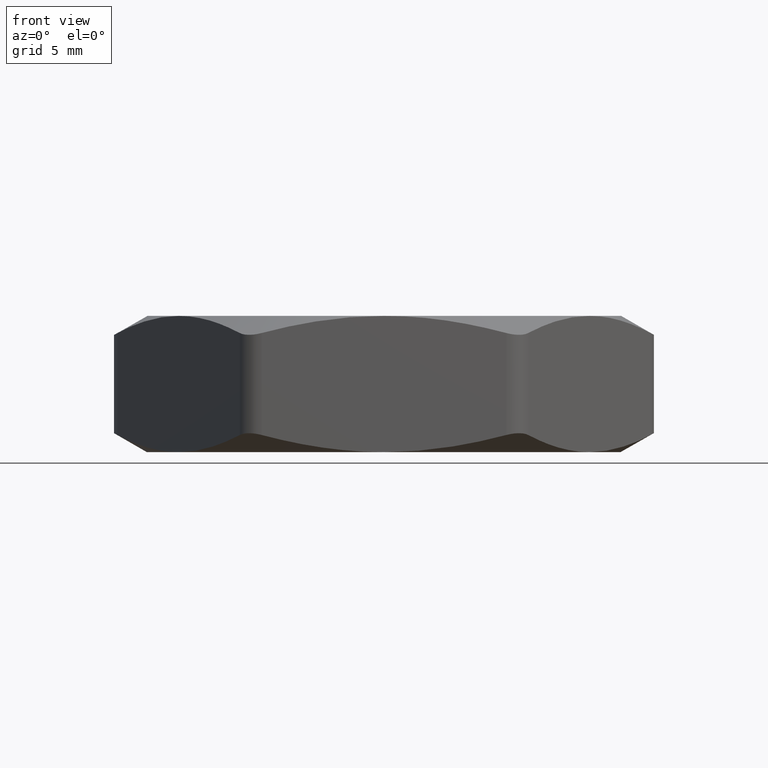
[diagram: clean part render]
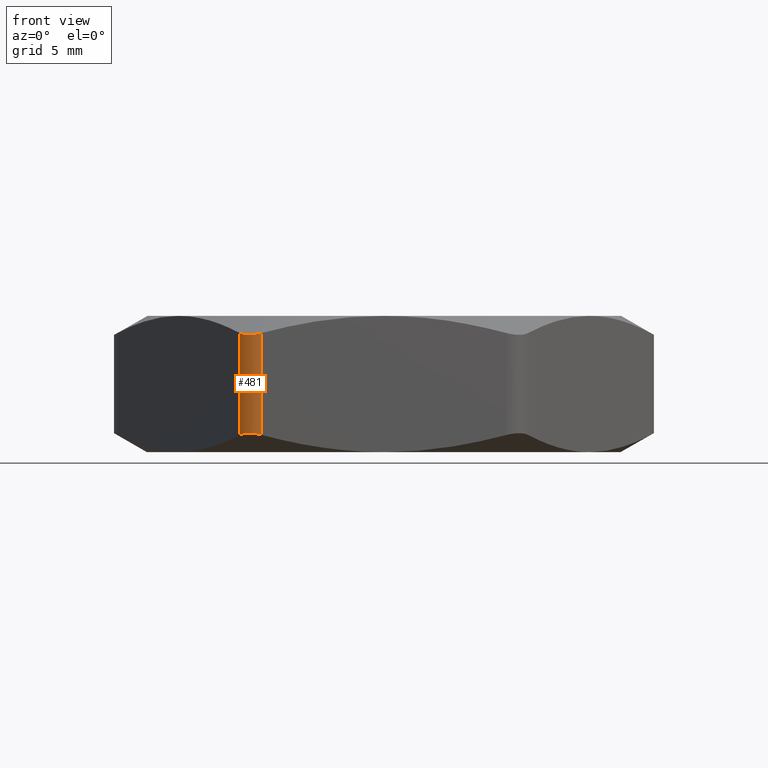
[diagram: same view with one face highlighted and labeled with its STEP entity id]
A machine part, front view. The second image highlights one B-rep face of the part: STEP entity #481.
In plain terms, the highlighted cylindrical surface (edge-blend (fillet) strip) has radius 1.27 mm, axis along (0, 0, -1).
Its self-contained STEP definition (entity closure, byte-faithful):
#81 = VERTEX_POINT ( 'NONE', #659 ) ;
#90 = EDGE_CURVE ( 'NONE', #107, #167, #679, .T. ) ;
#104 = VERTEX_POINT ( 'NONE', #753 ) ;
#106 = EDGE_CURVE ( 'NONE', #104, #107, #752, .T. ) ;
#107 = VERTEX_POINT ( 'NONE', #748 ) ;
#167 = VERTEX_POINT ( 'NONE', #902 ) ;
#169 = EDGE_CURVE ( 'NONE', #167, #81, #892, .T. ) ;
#219 = EDGE_CURVE ( 'NONE', #81, #104, #1056, .T. ) ;
#284 = ORIENTED_EDGE ( 'NONE', *, *, #169, .F. ) ;
#285 = ORIENTED_EDGE ( 'NONE', *, *, #219, .F. ) ;
#286 = ORIENTED_EDGE ( 'NONE', *, *, #90, .F. ) ;
#287 = ORIENTED_EDGE ( 'NONE', *, *, #106, .F. ) ;
#477 = EDGE_LOOP ( 'NONE', ( #286, #287, #285, #284 ) ) ;
#481 = ADVANCED_FACE ( 'NONE', ( #1529 ), #1527, .T. ) ;
#659 = CARTESIAN_POINT ( 'NONE',  ( -0.2424871130596481200, -0.4699999999999999200, 0.03398671253167293000 ) ) ;
#679 = B_SPLINE_CURVE_WITH_KNOTS ( 'NONE', 3,
 ( #732, #731, #730, #729, #728, #727, #726, #725, #724, #723 ),
 .UNSPECIFIED., .F., .F.,
 ( 4, 2, 2, 2, 4 ),
 ( 1.939479807224432100E-018, 0.0003346004369648837100, 0.0006692008739297654700, 0.001003801310894647200, 0.001338401747859529000 ),
 .UNSPECIFIED. ) ;
#723 = CARTESIAN_POINT ( 'NONE',  ( -0.2424871130596481200, -0.4699999999999999200, 0.2360132874683270900 ) ) ;
#724 = CARTESIAN_POINT ( 'NONE',  ( -0.2467906257256617900, -0.4699999999999999200, 0.2348740745843225800 ) ) ;
#725 = CARTESIAN_POINT ( 'NONE',  ( -0.2511558071752945700, -0.4694348894501826900, 0.2339838078123751000 ) ) ;
#726 = CARTESIAN_POINT ( 'NONE',  ( -0.2595695197585334800, -0.4671926470331578300, 0.2327948480342428300 ) ) ;
#727 = CARTESIAN_POINT ( 'NONE',  ( -0.2637174244368332100, -0.4654820836751393800, 0.2324851264982156200 ) ) ;
#728 = CARTESIAN_POINT ( 'NONE',  ( -0.2713318858670777400, -0.4610770634088212600, 0.2324891193021271200 ) ) ;
#729 = CARTESIAN_POINT ( 'NONE',  ( -0.2748511540334763200, -0.4583635455379319600, 0.2327976685536252100 ) ) ;
#730 = CARTESIAN_POINT ( 'NONE',  ( -0.2810295571764268000, -0.4521507818863170800, 0.2340004151482059900 ) ) ;
#731 = CARTESIAN_POINT ( 'NONE',  ( -0.2836373149338620200, -0.4487257596121365100, 0.2348744388444226900 ) ) ;
#732 = CARTESIAN_POINT ( 'NONE',  ( -0.2857883832488650200, -0.4449999999999999500, 0.2360132874683280900 ) ) ;
#748 = CARTESIAN_POINT ( 'NONE',  ( -0.2857883832488650200, -0.4449999999999999500, 0.2360132874683280900 ) ) ;
#749 = DIRECTION ( 'NONE',  ( 0.0000000000000000000, 0.0000000000000000000, 1.000000000000000000 ) ) ;
#750 = VECTOR ( 'NONE', #749, 39.37007874015748100 ) ;
#751 = CARTESIAN_POINT ( 'NONE',  ( -0.2857883832488650700, -0.4449999999999999000, 0.2700000000000000200 ) ) ;
#752 = LINE ( 'NONE', #751, #750 ) ;
#753 = CARTESIAN_POINT ( 'NONE',  ( -0.2857883832488720100, -0.4449999999999877900, 0.03398671253166812800 ) ) ;
#889 = DIRECTION ( 'NONE',  ( 0.0000000000000000000, 0.0000000000000000000, -1.000000000000000000 ) ) ;
#890 = VECTOR ( 'NONE', #889, 39.37007874015748100 ) ;
#891 = CARTESIAN_POINT ( 'NONE',  ( -0.2424871130596431000, -0.4699999999999999200, 0.2700000000000000200 ) ) ;
#892 = LINE ( 'NONE', #891, #890 ) ;
#902 = CARTESIAN_POINT ( 'NONE',  ( -0.2424871130596481200, -0.4699999999999999200, 0.2360132874683270900 ) ) ;
#1056 = B_SPLINE_CURVE_WITH_KNOTS ( 'NONE', 3,
 ( #1060, #1059, #1118, #1117, #1116, #1115, #1114, #1113, #1112, #1111 ),
 .UNSPECIFIED., .F., .F.,
 ( 4, 2, 2, 2, 4 ),
 ( 6.330338866656917800E-017, 0.0003346004369650512200, 0.0006692008739300391200, 0.001003801310895027100, 0.001338401747860014900 ),
 .UNSPECIFIED. ) ;
#1059 = CARTESIAN_POINT ( 'NONE',  ( -0.2467892496896504900, -0.4699999999999997500, 0.03512556115559144200 ) ) ;
#1060 = CARTESIAN_POINT ( 'NONE',  ( -0.2424871130596481200, -0.4699999999999999200, 0.03398671253167293000 ) ) ;
#1111 = CARTESIAN_POINT ( 'NONE',  ( -0.2857883832488720100, -0.4449999999999877900, 0.03398671253166812800 ) ) ;
#1112 = CARTESIAN_POINT ( 'NONE',  ( -0.2836366269158678300, -0.4487269512942628800, 0.03512592541567281100 ) ) ;
#1113 = CARTESIAN_POINT ( 'NONE',  ( -0.2809646360989619400, -0.4522247540468689000, 0.03601619218762191300 ) ) ;
#1114 = CARTESIAN_POINT ( 'NONE',  ( -0.2748159409127563500, -0.4583901216755859000, 0.03720515196575587000 ) ) ;
#1115 = CARTESIAN_POINT ( 'NONE',  ( -0.2712605972507799400, -0.4611270308204621400, 0.03751487350178380600 ) ) ;
#1116 = CARTESIAN_POINT ( 'NONE',  ( -0.2636385070808397500, -0.4655188377220346700, 0.03751088069787354000 ) ) ;
#1117 = CARTESIAN_POINT ( 'NONE',  ( -0.2595288975878267700, -0.4672098544214224300, 0.03720233144637589300 ) ) ;
#1118 = CARTESIAN_POINT ( 'NONE',  ( -0.2510592848663424400, -0.4694541266722340700, 0.03599958485179552400 ) ) ;
#1523 = DIRECTION ( 'NONE',  ( -1.000000000000000000, 0.0000000000000000000, 0.0000000000000000000 ) ) ;
#1524 = DIRECTION ( 'NONE',  ( 0.0000000000000000000, 0.0000000000000000000, -1.000000000000000000 ) ) ;
#1525 = CARTESIAN_POINT ( 'NONE',  ( -0.2424871130596431000, -0.4199999999999998700, 0.2700000000000000200 ) ) ;
#1526 = AXIS2_PLACEMENT_3D ( 'NONE', #1525, #1524, #1523 ) ;
#1527 = CYLINDRICAL_SURFACE ( 'NONE', #1526, 0.05000000000000001000 ) ;
#1529 = FACE_OUTER_BOUND ( 'NONE', #477, .T. ) ;